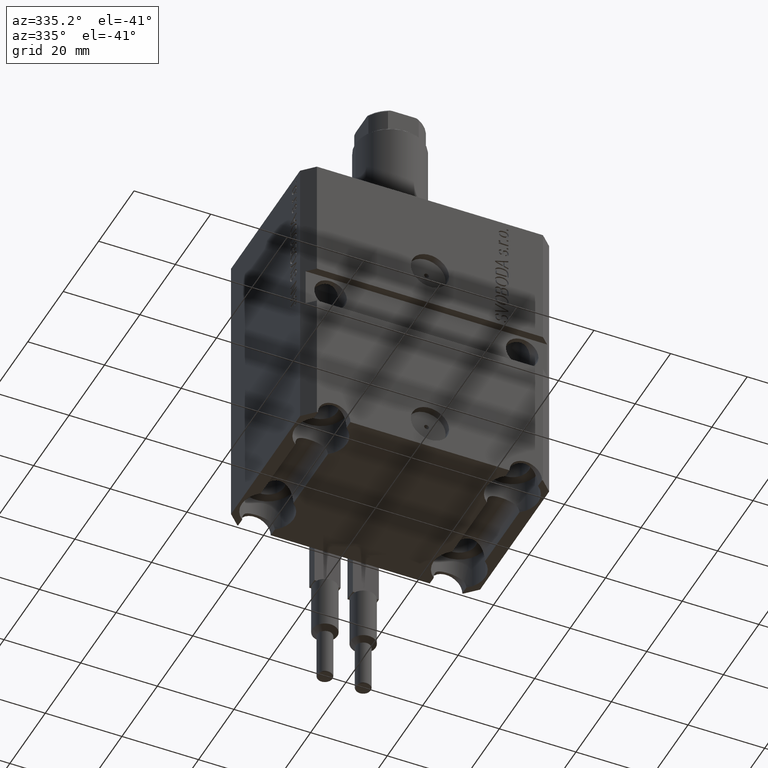
[diagram: clean part render]
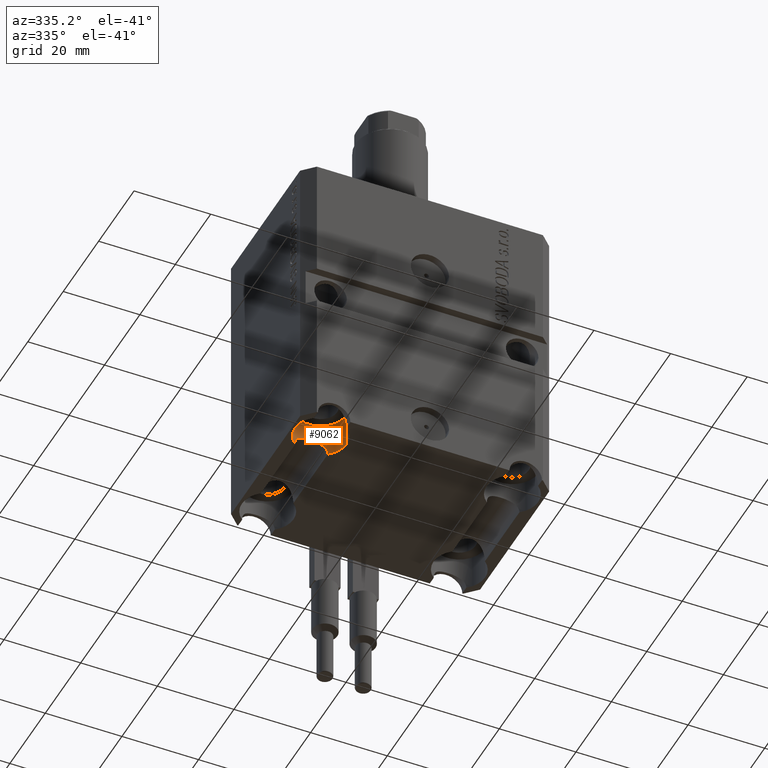
[diagram: same view with one face highlighted and labeled with its STEP entity id]
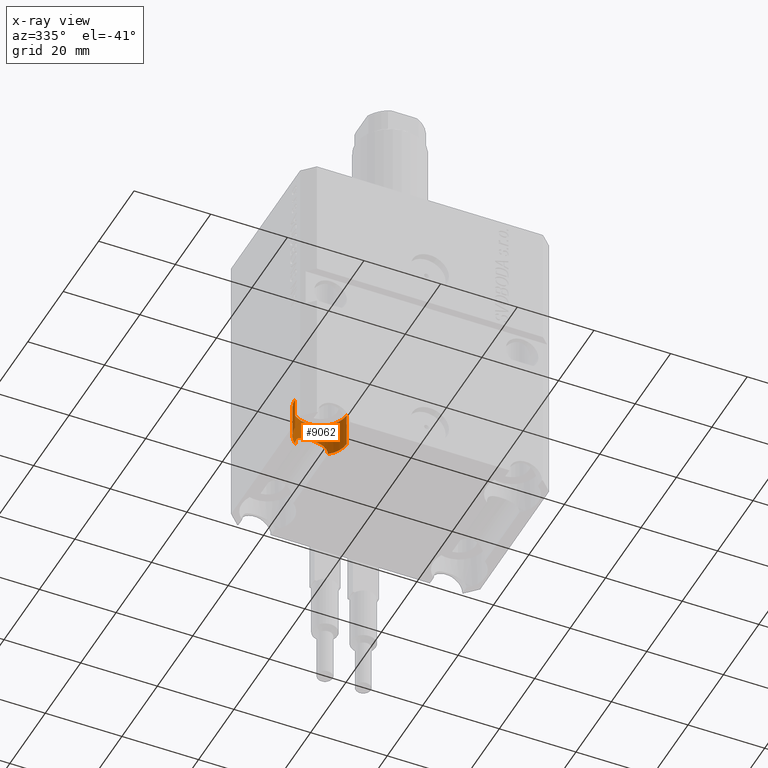
[diagram: x-ray of the same camera — body ghosted, the highlighted face saturated]
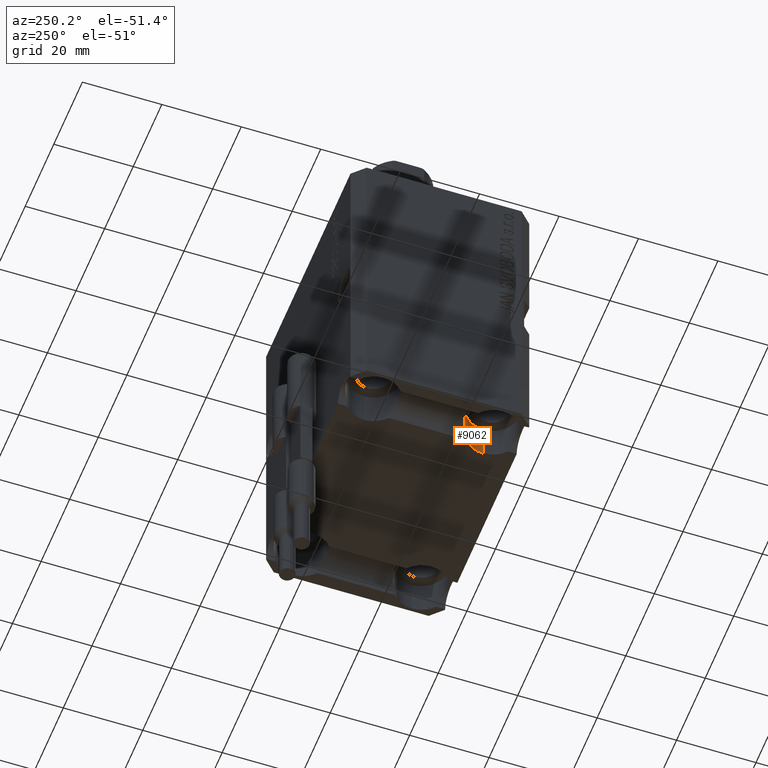
[diagram: same view with one face highlighted and labeled with its STEP entity id]
A machine part, auxiliary view. The second image highlights one B-rep face of the part: STEP entity #9062.
The next image is the same camera in x-ray: the body ghosted, the highlighted face saturated — about 0% of this face is hidden behind the body in this view.
A second angle (auxiliary view) of the same face is appended — the face is thin or edge-on in the first view.
In plain terms, the highlighted cylindrical surface (edge-blend (fillet) strip) has radius 6.75 mm, axis along (-0, -0, -1).
Its self-contained STEP definition (entity closure, byte-faithful):
#553 = DIRECTION ( 'NONE',  ( -0.000000000000000000, -0.000000000000000000, 1.000000000000000000 ) ) ;
#1537 = CARTESIAN_POINT ( 'NONE',  ( -20.75000000002341949, -9.755955759076792688, -76.71009799152882636 ) ) ;
#2917 = EDGE_LOOP ( 'NONE', ( #17195, #21736, #18212, #22918, #42243, #3831 ) ) ;
#2972 = DIRECTION ( 'NONE',  ( -1.000000000000000000, 0.000000000000000000, 0.000000000000000000 ) ) ;
#3322 = CARTESIAN_POINT ( 'NONE',  ( -29.02227310739388599, -9.577720785236897072, -75.60013285955649565 ) ) ;
#3831 = ORIENTED_EDGE ( 'NONE', *, *, #42667, .F. ) ;
#3889 = VERTEX_POINT ( 'NONE', #41904 ) ;
#5064 = LINE ( 'NONE', #15378, #9419 ) ;
#5634 = CARTESIAN_POINT ( 'NONE',  ( -21.62635808325929432, -9.150814048462956762, -74.40085671728226657 ) ) ;
#6306 = CARTESIAN_POINT ( 'NONE',  ( -28.67871215735741686, -9.337749977211846186, -74.85450094120052711 ) ) ;
#6765 = CARTESIAN_POINT ( 'NONE',  ( -28.37607943380651676, -9.152258032891463557, -74.40420012238477909 ) ) ;
#7040 = DIRECTION ( 'NONE',  ( -0.000000000000000000, -0.000000000000000000, 1.000000000000000000 ) ) ;
#7573 = EDGE_CURVE ( 'NONE', #3889, #14880, #5064, .T. ) ;
#7780 = CARTESIAN_POINT ( 'NONE',  ( -29.24999999997659472, -9.755955759076794465, -77.00000000000000000 ) ) ;
#8032 = VECTOR ( 'NONE', #11629, 1000.000000000000000 ) ;
#8402 = CARTESIAN_POINT ( 'NONE',  ( -20.77931889816612454, -9.731843168854668491, -76.42737131045565491 ) ) ;
#8618 = CARTESIAN_POINT ( 'NONE',  ( -20.97675713900064665, -9.578437475966795844, -75.60281154740532372 ) ) ;
#9062 = ADVANCED_FACE ( 'NONE', ( #23586 ), #37793, .F. ) ;
#9288 = CARTESIAN_POINT ( 'NONE',  ( -28.80802956309132057, -9.425172318363678414, -75.09285034462941155 ) ) ;
#9419 = VECTOR ( 'NONE', #31876, 1000.000000000000000 ) ;
#9519 = CARTESIAN_POINT ( 'NONE',  ( -21.79750428077123203, -9.054266744578491455, -74.19299196561978249 ) ) ;
#9743 = CARTESIAN_POINT ( 'NONE',  ( -25.13627237637795986, -8.249839121724832580, -72.74974448727483889 ) ) ;
#10401 = DIRECTION ( 'NONE',  ( 1.000000000000000000, 0.000000000000000000, 0.000000000000000000 ) ) ;
#11629 = DIRECTION ( 'NONE',  ( -0.000000000000000000, -0.000000000000000000, -1.000000000000000000 ) ) ;
#12665 = CIRCLE ( 'NONE', #44857, 6.750000000041541881 ) ;
#12955 = CARTESIAN_POINT ( 'NONE',  ( -29.24999999997659827, -9.755955759076792688, -76.70949288175364700 ) ) ;
#12989 = EDGE_CURVE ( 'NONE', #44139, #36463, #40269, .T. ) ;
#13190 = CARTESIAN_POINT ( 'NONE',  ( -22.84173582148502035, -8.599792435500894783, -73.32865104542833024 ) ) ;
#13416 = CARTESIAN_POINT ( 'NONE',  ( -29.10748172653942234, -9.643111491733247220, -75.87265381712948908 ) ) ;
#13639 = CARTESIAN_POINT ( 'NONE',  ( -23.86779481284832727, -8.339774118100578448, -72.89383447811641759 ) ) ;
#13812 = AXIS2_PLACEMENT_3D ( 'NONE', #24144, #553, #10401 ) ;
#13872 = CARTESIAN_POINT ( 'NONE',  ( -27.63063516956975718, -8.769146747284731092, -73.61859649154382623 ) ) ;
#14880 = VERTEX_POINT ( 'NONE', #36811 ) ;
#15378 = CARTESIAN_POINT ( 'NONE',  ( -18.24999999995846167, -15.00000000000000000, -68.00000000000000000 ) ) ;
#16402 = CARTESIAN_POINT ( 'NONE',  ( -25.28147813201195149, -8.254362098399216308, -72.75691690225701791 ) ) ;
#16848 = CARTESIAN_POINT ( 'NONE',  ( -25.70698340320889130, -8.285663818736560771, -72.80681513056450171 ) ) ;
#17195 = ORIENTED_EDGE ( 'NONE', *, *, #7573, .F. ) ;
#17582 = CIRCLE ( 'NONE', #40250, 6.750000000041541881 ) ;
#18212 = ORIENTED_EDGE ( 'NONE', *, *, #12989, .T. ) ;
#20044 = CARTESIAN_POINT ( 'NONE',  ( -29.22056078277069702, -9.731743428534093354, -76.42625595530236637 ) ) ;
#20363 = CARTESIAN_POINT ( 'NONE',  ( -25.00000000000000355, -15.00000000000000000, -68.00000000000000000 ) ) ;
#21736 = ORIENTED_EDGE ( 'NONE', *, *, #39811, .T. ) ;
#21856 = CIRCLE ( 'NONE', #13812, 6.750000000041541881 ) ;
#22152 = EDGE_CURVE ( 'NONE', #29856, #36463, #12665, .T. ) ;
#22510 = DIRECTION ( 'NONE',  ( 1.000000000000000000, 0.000000000000000000, 0.000000000000000000 ) ) ;
#22639 = AXIS2_PLACEMENT_3D ( 'NONE', #20363, #27469, #2972 ) ;
#22918 = ORIENTED_EDGE ( 'NONE', *, *, #22152, .F. ) ;
#23586 = FACE_OUTER_BOUND ( 'NONE', #2917, .T. ) ;
#23714 = CARTESIAN_POINT ( 'NONE',  ( -27.17033541369506011, -8.586417356538943224, -73.30345003138967286 ) ) ;
#24083 = CARTESIAN_POINT ( 'NONE',  ( -31.75000000004154899, -15.00000000000000000, -77.00000000000000000 ) ) ;
#24144 = CARTESIAN_POINT ( 'NONE',  ( -25.00000000000000355, -15.00000000000000000, -68.00000000000000000 ) ) ;
#26031 = CARTESIAN_POINT ( 'NONE',  ( -20.89200569149565467, -9.643507852874535047, -75.87463990617987974 ) ) ;
#26486 = CARTESIAN_POINT ( 'NONE',  ( -20.75000000002341594, -9.755955759076794465, -77.00000000000000000 ) ) ;
#26918 = CARTESIAN_POINT ( 'NONE',  ( -26.39825195969116223, -8.391076790372620664, -72.97688232502905237 ) ) ;
#27424 = CARTESIAN_POINT ( 'NONE',  ( -25.00000000000000355, -15.00000000000000000, -77.00000000000000000 ) ) ;
#27469 = DIRECTION ( 'NONE',  ( -0.000000000000000000, -0.000000000000000000, -1.000000000000000000 ) ) ;
#27599 = CARTESIAN_POINT ( 'NONE',  ( -28.20218712366120428, -9.054092496637586862, -74.19261591592753291 ) ) ;
#28534 = VERTEX_POINT ( 'NONE', #37125 ) ;
#29856 = VERTEX_POINT ( 'NONE', #7780 ) ;
#30376 = CARTESIAN_POINT ( 'NONE',  ( -23.59320608363998062, -8.392954363145582519, -72.97996965331982722 ) ) ;
#30821 = CARTESIAN_POINT ( 'NONE',  ( -24.42185417675575110, -8.269008632392901958, -72.78001998985968157 ) ) ;
#31876 = DIRECTION ( 'NONE',  ( -0.000000000000000000, -0.000000000000000000, -1.000000000000000000 ) ) ;
#32828 = DIRECTION ( 'NONE',  ( -0.000000000000000000, -0.000000000000000000, 1.000000000000000000 ) ) ;
#33858 = DIRECTION ( 'NONE',  ( 1.000000000000000000, 0.000000000000000000, 0.000000000000000000 ) ) ;
#34025 = CARTESIAN_POINT ( 'NONE',  ( -22.39010252323638994, -8.770297254786918018, -73.63468536815973664 ) ) ;
#34734 = B_SPLINE_CURVE_WITH_KNOTS ( 'NONE', 3,
 ( #26486, #1537, #8402, #26031, #8618, #40480, #37025, #5634, #9519, #40693, #34025, #13190, #44817, #30376, #13639, #30821, #37923, #9743, #16402, #38162, #16848, #44582, #26918, #23714, #13872, #27599, #6765, #6306, #9288, #3322, #13416, #20044, #12955, #37248 ),
 .UNSPECIFIED., .F., .F.,
 ( 4, 2, 2, 2, 2, 2, 2, 2, 2, 2, 2, 2, 2, 2, 2, 2, 4 ),
 ( 0.000000000000000000, 0.0008545648006833394400, 0.001709129601366678880, 0.002563694402050018320, 0.003418259202733357760, 0.004272824003416696333, 0.005127388804100036640, 0.005981953604783376080, 0.006836518405466715520, 0.007263800805808384373, 0.007691083206150054093, 0.008545648006833383992, 0.01025477760820006808, 0.01110934240888340752, 0.01196390720956674522, 0.01281847201025008640, 0.01367303681093342410 ),
 .UNSPECIFIED. ) ;
#36463 = VERTEX_POINT ( 'NONE', #24083 ) ;
#36811 = CARTESIAN_POINT ( 'NONE',  ( -18.24999999995845812, -15.00000000000000000, -77.00000000000000000 ) ) ;
#37025 = CARTESIAN_POINT ( 'NONE',  ( -21.32158593238393962, -9.337517679920530611, -74.85377644835143940 ) ) ;
#37125 = CARTESIAN_POINT ( 'NONE',  ( -20.75000000002341594, -9.755955759076794465, -77.00000000000000000 ) ) ;
#37248 = CARTESIAN_POINT ( 'NONE',  ( -29.24999999997659472, -9.755955759076794465, -77.00000000000000000 ) ) ;
#37793 = CYLINDRICAL_SURFACE ( 'NONE', #22639, 6.750000000041545434 ) ;
#37923 = CARTESIAN_POINT ( 'NONE',  ( -24.70420972189264575, -8.250335098515231280, -72.75053221590859209 ) ) ;
#38162 = CARTESIAN_POINT ( 'NONE',  ( -25.56629627401395410, -8.272283510108959348, -72.78546649755983822 ) ) ;
#39263 = CARTESIAN_POINT ( 'NONE',  ( -25.00000000000000355, -15.00000000000000000, -77.00000000000000000 ) ) ;
#39716 = CARTESIAN_POINT ( 'NONE',  ( -31.75000000004154899, -15.00000000000000000, -68.00000000000000000 ) ) ;
#39811 = EDGE_CURVE ( 'NONE', #3889, #44139, #21856, .T. ) ;
#40250 = AXIS2_PLACEMENT_3D ( 'NONE', #27424, #7040, #33858 ) ;
#40269 = LINE ( 'NONE', #43035, #8032 ) ;
#40480 = CARTESIAN_POINT ( 'NONE',  ( -21.19116480229630284, -9.425719978569699009, -75.09437854562361281 ) ) ;
#40693 = CARTESIAN_POINT ( 'NONE',  ( -22.17812037901671118, -8.864470831217326818, -73.81060062998804483 ) ) ;
#41904 = CARTESIAN_POINT ( 'NONE',  ( -18.24999999995845812, -15.00000000000000000, -68.00000000000000000 ) ) ;
#42243 = ORIENTED_EDGE ( 'NONE', *, *, #42861, .F. ) ;
#42667 = EDGE_CURVE ( 'NONE', #14880, #28534, #17582, .T. ) ;
#42861 = EDGE_CURVE ( 'NONE', #28534, #29856, #34734, .T. ) ;
#43035 = CARTESIAN_POINT ( 'NONE',  ( -31.75000000004154899, -15.00000000000000000, -68.00000000000000000 ) ) ;
#44139 = VERTEX_POINT ( 'NONE', #39716 ) ;
#44582 = CARTESIAN_POINT ( 'NONE',  ( -26.12405281686402603, -8.338352395018040042, -72.89153254945361482 ) ) ;
#44817 = CARTESIAN_POINT ( 'NONE',  ( -23.08174660420397117, -8.522930826361234224, -73.19736709359762017 ) ) ;
#44857 = AXIS2_PLACEMENT_3D ( 'NONE', #39263, #32828, #22510 ) ;